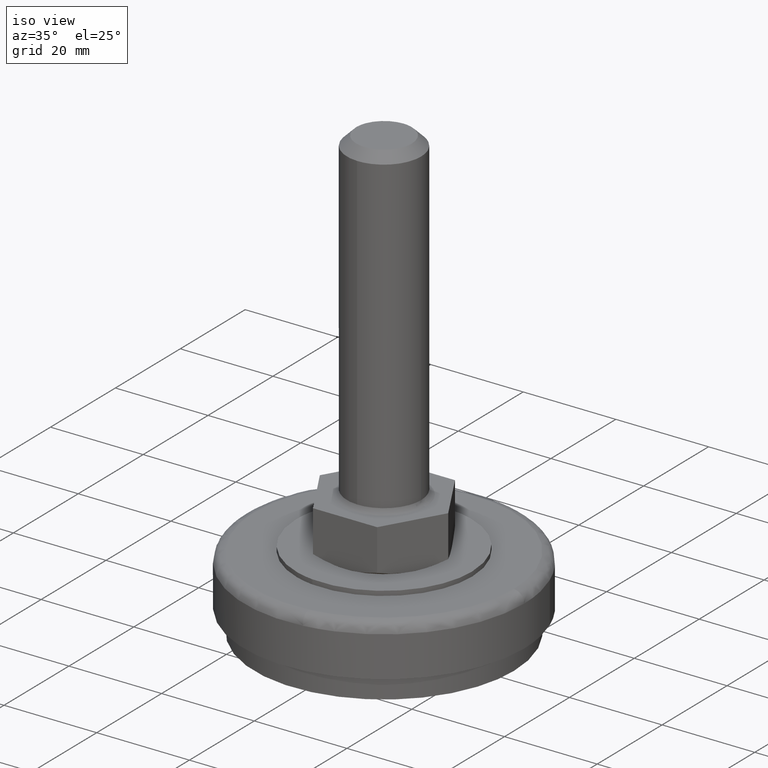
[diagram: clean part render]
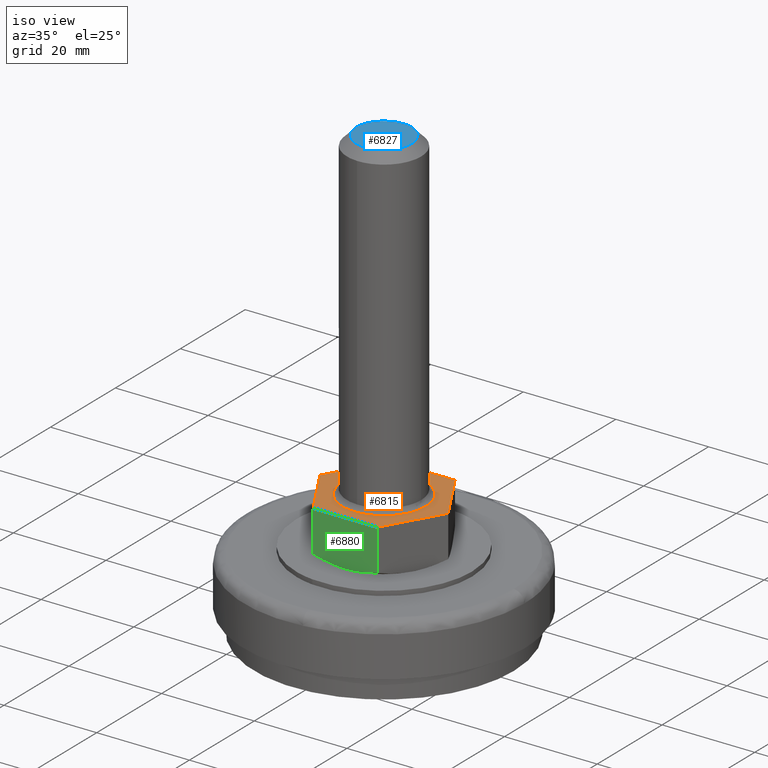
[diagram: same view with three faces highlighted in distinct colors, each labeled with its STEP entity id]
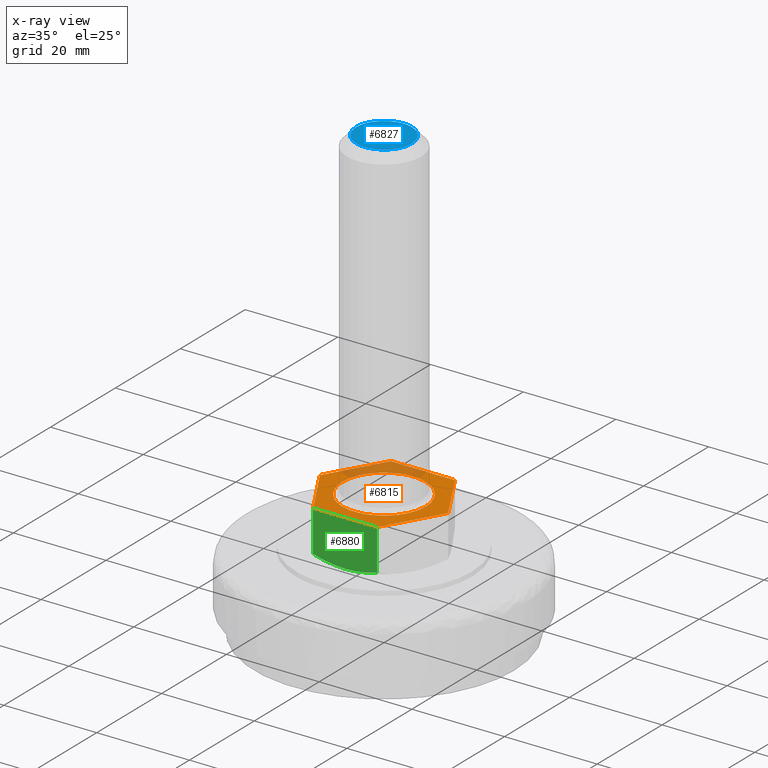
[diagram: x-ray of the same camera — body ghosted, the three highlighted faces saturated]
A machine part, iso view with three faces highlighted in distinct colors.
The next image is the same camera in x-ray (body ghosted, the three faces saturated) — at least one of them is partly hidden behind the body in this view.
Their STEP definitions:

[orange] entity #6815 — the highlighted face is a freeform B-spline surface patch.
#5915=CARTESIAN_POINT('',(-9.0,0.0,27.0));
#5916=VERTEX_POINT('',#5915);
#5917=CARTESIAN_POINT('',(0.627599264215905,8.978091064476018,27.0));
#5918=VERTEX_POINT('',#5917);
#5919=CARTESIAN_POINT('',(-9.0,0.0,27.0));
#5920=CARTESIAN_POINT('',(-9.0,9.0,27.0));
#5921=CARTESIAN_POINT('',(0.0,9.0,27.0));
#5922=CARTESIAN_POINT('',(0.314182042915423,8.999999999999998,27.000000000000004));
#5923=CARTESIAN_POINT('',(0.627599264215905,8.978091064476018,27.000000000000004));
#5931=(BOUNDED_CURVE()B_SPLINE_CURVE(2,(#5919,#5920,#5921,#5922,#5923),.UNSPECIFIED.,.F.,.U.)B_SPLINE_CURVE_WITH_KNOTS((3,2,3),(0.500000000000000,0.750000000000000,0.762166313466508),.UNSPECIFIED.)CURVE()GEOMETRIC_REPRESENTATION_ITEM()RATIONAL_B_SPLINE_CURVE((1.0,0.707106781186547,1.0,0.985746277150805,0.972879876383594))REPRESENTATION_ITEM(''));
#5932=EDGE_CURVE('',#5916,#5918,#5931,.T.);
#5934=CARTESIAN_POINT('',(8.999289397697183,-0.113094358939853,27.0));
#5935=VERTEX_POINT('',#5934);
#5936=CARTESIAN_POINT('',(8.999289397697183,-0.113094358939853,27.0));
#5937=CARTESIAN_POINT('',(8.887607369182808,-9.000000000000002,26.999999999999996));
#5938=CARTESIAN_POINT('',(0.0,-9.0,27.0));
#5939=CARTESIAN_POINT('',(-9.0,-9.0,27.0));
#5940=CARTESIAN_POINT('',(-9.0,0.0,27.0));
#5948=(BOUNDED_CURVE()B_SPLINE_CURVE(2,(#5936,#5937,#5938,#5939,#5940),.UNSPECIFIED.,.F.,.U.)B_SPLINE_CURVE_WITH_KNOTS((3,2,3),(0.002215704077936,0.250000000000000,0.500000000000000),.UNSPECIFIED.)CURVE()GEOMETRIC_REPRESENTATION_ITEM()RATIONAL_B_SPLINE_CURVE((0.994854295644786,0.709702639983846,1.0,0.707106781186547,1.0))REPRESENTATION_ITEM(''));
#5949=EDGE_CURVE('',#5935,#5916,#5948,.T.);
#6001=CARTESIAN_POINT('',(9.0,0.0,27.0));
#6002=VERTEX_POINT('',#6001);
#6003=CARTESIAN_POINT('',(0.627599264215905,8.978091064476018,27.0));
#6004=CARTESIAN_POINT('',(9.000000000000002,8.392831625319252,27.000000000000007));
#6005=CARTESIAN_POINT('',(9.0,0.0,27.0));
#6013=(BOUNDED_CURVE()B_SPLINE_CURVE(2,(#6003,#6004,#6005),.UNSPECIFIED.,.F.,.U.)B_SPLINE_CURVE_WITH_KNOTS((3,3),(0.762166313466507,1.0),.UNSPECIFIED.)CURVE()GEOMETRIC_REPRESENTATION_ITEM()RATIONAL_B_SPLINE_CURVE((0.972879876383594,0.721360504035743,1.0))REPRESENTATION_ITEM(''));
#6014=EDGE_CURVE('',#5918,#6002,#6013,.T.);
#6020=CARTESIAN_POINT('',(9.0,0.0,27.0));
#6021=CARTESIAN_POINT('',(8.999999999999998,-0.056549411918412,27.0));
#6022=CARTESIAN_POINT('',(8.999289397697183,-0.113094358939853,27.0));
#6030=(BOUNDED_CURVE()B_SPLINE_CURVE(2,(#6020,#6021,#6022),.UNSPECIFIED.,.F.,.U.)B_SPLINE_CURVE_WITH_KNOTS((3,3),(0.0,0.002215704077936),.UNSPECIFIED.)CURVE()GEOMETRIC_REPRESENTATION_ITEM()RATIONAL_B_SPLINE_CURVE((1.0,0.997404141202701,0.994854295644786))REPRESENTATION_ITEM(''));
#6031=EDGE_CURVE('',#6002,#5935,#6030,.T.);
#6760=CARTESIAN_POINT('',(-15.233615466367590,-13.198799953483350,27.0));
#6761=CARTESIAN_POINT('',(15.233615714024880,-13.198799953483350,27.0));
#6762=CARTESIAN_POINT('',(-15.233615466367590,13.198800597213509,27.0));
#6763=CARTESIAN_POINT('',(15.233615714024880,13.198800597213509,27.0));
#6764=B_SPLINE_SURFACE_WITH_KNOTS('',1,1,((#6760,#6762),(#6761,#6763)),.UNSPECIFIED.,.F.,.F.,.U.,(2,2),(2,2),(0.0,30.467231180392471),(0.0,26.397600550696851),.UNSPECIFIED.);
#6765=CARTESIAN_POINT('',(-6.921797000000001,12.0,27.0));
#6766=VERTEX_POINT('',#6765);
#6767=CARTESIAN_POINT('',(6.921797000000001,12.0,27.0));
#6768=VERTEX_POINT('',#6767);
#6769=CARTESIAN_POINT('',(-6.921797000000001,12.0,27.0));
#6770=CARTESIAN_POINT('',(6.921797000000001,12.0,27.0));
#6771=QUASI_UNIFORM_CURVE('',1,(#6769,#6770),.UNSPECIFIED.,.F.,.U.);
#6772=EDGE_CURVE('',#6766,#6768,#6771,.T.);
#6773=ORIENTED_EDGE('',*,*,#6772,.F.);
#6774=CARTESIAN_POINT('',(-13.850000000000000,0.0,27.0));
#6775=VERTEX_POINT('',#6774);
#6776=CARTESIAN_POINT('',(-13.850000000000000,0.0,27.0));
#6777=CARTESIAN_POINT('',(-6.921797000000001,12.0,27.0));
#6778=QUASI_UNIFORM_CURVE('',1,(#6776,#6777),.UNSPECIFIED.,.F.,.U.);
#6779=EDGE_CURVE('',#6775,#6766,#6778,.T.);
#6780=ORIENTED_EDGE('',*,*,#6779,.F.);
#6781=CARTESIAN_POINT('',(-6.921797000000001,-12.0,27.0));
#6782=VERTEX_POINT('',#6781);
#6783=CARTESIAN_POINT('',(-6.921797000000001,-12.0,27.0));
#6784=CARTESIAN_POINT('',(-13.850000000000000,0.0,27.0));
#6785=QUASI_UNIFORM_CURVE('',1,(#6783,#6784),.UNSPECIFIED.,.F.,.U.);
#6786=EDGE_CURVE('',#6782,#6775,#6785,.T.);
#6787=ORIENTED_EDGE('',*,*,#6786,.F.);
#6788=CARTESIAN_POINT('',(6.921797000000001,-12.0,27.0));
#6789=VERTEX_POINT('',#6788);
#6790=CARTESIAN_POINT('',(6.921797000000001,-12.0,27.0));
#6791=CARTESIAN_POINT('',(-6.921797000000001,-12.0,27.0));
#6792=QUASI_UNIFORM_CURVE('',1,(#6790,#6791),.UNSPECIFIED.,.F.,.U.);
#6793=EDGE_CURVE('',#6789,#6782,#6792,.T.);
#6794=ORIENTED_EDGE('',*,*,#6793,.F.);
#6795=CARTESIAN_POINT('',(13.850000000000000,0.0,27.0));
#6796=VERTEX_POINT('',#6795);
#6797=CARTESIAN_POINT('',(13.850000000000000,0.0,27.0));
#6798=CARTESIAN_POINT('',(6.921797000000001,-12.0,27.0));
#6799=QUASI_UNIFORM_CURVE('',1,(#6797,#6798),.UNSPECIFIED.,.F.,.U.);
#6800=EDGE_CURVE('',#6796,#6789,#6799,.T.);
#6801=ORIENTED_EDGE('',*,*,#6800,.F.);
#6802=CARTESIAN_POINT('',(6.921797000000001,12.0,27.0));
#6803=CARTESIAN_POINT('',(13.850000000000000,0.0,27.0));
#6804=QUASI_UNIFORM_CURVE('',1,(#6802,#6803),.UNSPECIFIED.,.F.,.U.);
#6805=EDGE_CURVE('',#6768,#6796,#6804,.T.);
#6806=ORIENTED_EDGE('',*,*,#6805,.F.);
#6807=EDGE_LOOP('',(#6773,#6780,#6787,#6794,#6801,#6806));
#6808=FACE_OUTER_BOUND('',#6807,.T.);
#6809=ORIENTED_EDGE('',*,*,#6031,.T.);
#6810=ORIENTED_EDGE('',*,*,#5949,.T.);
#6811=ORIENTED_EDGE('',*,*,#5932,.T.);
#6812=ORIENTED_EDGE('',*,*,#6014,.T.);
#6813=EDGE_LOOP('',(#6809,#6810,#6811,#6812));
#6814=FACE_BOUND('',#6813,.T.);
#6815=ADVANCED_FACE('',(#6808,#6814),#6764,.T.);

[blue] entity #6827 — the highlighted face is a freeform B-spline surface patch.
#5388=CARTESIAN_POINT('',(6.0,0.0,97.0));
#5389=VERTEX_POINT('',#5388);
#5390=CARTESIAN_POINT('',(4.137835456707148,4.344918610655132,96.999999999999972));
#5391=VERTEX_POINT('',#5390);
#5392=CARTESIAN_POINT('',(6.0,0.0,97.0));
#5393=CARTESIAN_POINT('',(5.999999999999999,2.571506686533739,96.999999999999986));
#5394=CARTESIAN_POINT('',(4.137835456707148,4.344918610655131,96.999999999999972));
#5402=(BOUNDED_CURVE()B_SPLINE_CURVE(2,(#5392,#5393,#5394),.UNSPECIFIED.,.F.,.U.)B_SPLINE_CURVE_WITH_KNOTS((3,3),(0.500000000000000,0.628682976150245),.UNSPECIFIED.)CURVE()GEOMETRIC_REPRESENTATION_ITEM()RATIONAL_B_SPLINE_CURVE((1.0,0.849238515635440,0.853680523245762))REPRESENTATION_ITEM(''));
#5403=EDGE_CURVE('',#5389,#5391,#5402,.T.);
#5405=CARTESIAN_POINT('',(-6.0,0.0,97.0));
#5406=VERTEX_POINT('',#5405);
#5407=CARTESIAN_POINT('',(-6.0,0.0,97.0));
#5408=CARTESIAN_POINT('',(-6.0,-6.0,97.0));
#5409=CARTESIAN_POINT('',(0.0,-6.0,97.0));
#5410=CARTESIAN_POINT('',(6.0,-6.0,97.0));
#5411=CARTESIAN_POINT('',(6.0,0.0,97.0));
#5419=(BOUNDED_CURVE()B_SPLINE_CURVE(2,(#5407,#5408,#5409,#5410,#5411),.UNSPECIFIED.,.F.,.U.)B_SPLINE_CURVE_WITH_KNOTS((3,2,3),(0.0,0.250000000000000,0.500000000000000),.UNSPECIFIED.)CURVE()GEOMETRIC_REPRESENTATION_ITEM()RATIONAL_B_SPLINE_CURVE((1.0,0.707106781186548,1.0,0.707106781186548,1.0))REPRESENTATION_ITEM(''));
#5420=EDGE_CURVE('',#5406,#5389,#5419,.T.);
#5422=CARTESIAN_POINT('',(0.052359213484174,5.999771538448032,96.999999999932683));
#5423=VERTEX_POINT('',#5422);
#5424=CARTESIAN_POINT('',(0.052359213484174,5.999771538448032,96.999999999932683));
#5425=CARTESIAN_POINT('',(0.026180105417581,6.000000000000001,97.0));
#5426=CARTESIAN_POINT('',(0.0,6.0,97.0));
#5427=CARTESIAN_POINT('',(-6.0,6.0,97.0));
#5428=CARTESIAN_POINT('',(-6.0,0.0,97.0));
#5436=(BOUNDED_CURVE()B_SPLINE_CURVE(2,(#5424,#5425,#5426,#5427,#5428),.UNSPECIFIED.,.F.,.U.)B_SPLINE_CURVE_WITH_KNOTS((3,2,3),(0.748460105636045,0.750000000000000,1.0),.UNSPECIFIED.)CURVE()GEOMETRIC_REPRESENTATION_ITEM()RATIONAL_B_SPLINE_CURVE((0.996414028033367,0.998195901532435,1.0,0.707106781186548,1.0))REPRESENTATION_ITEM(''));
#5437=EDGE_CURVE('',#5423,#5406,#5436,.T.);
#5547=CARTESIAN_POINT('',(4.137835456707148,4.344918610655131,96.999999999999972));
#5548=CARTESIAN_POINT('',(2.421876689004428,5.979093072254260,97.000000000000014));
#5549=CARTESIAN_POINT('',(0.052359213484174,5.999771538448032,96.999999999932683));
#5557=(BOUNDED_CURVE()B_SPLINE_CURVE(2,(#5547,#5548,#5549),.UNSPECIFIED.,.F.,.U.)B_SPLINE_CURVE_WITH_KNOTS((3,3),(0.628682976150245,0.748460105636046),.UNSPECIFIED.)CURVE()GEOMETRIC_REPRESENTATION_ITEM()RATIONAL_B_SPLINE_CURVE((0.853680523245762,0.857815109938078,0.996414028033368))REPRESENTATION_ITEM(''));
#5558=EDGE_CURVE('',#5391,#5423,#5557,.T.);
#6816=CARTESIAN_POINT('',(-6.599399976741671,6.599160150396743,97.0));
#6817=CARTESIAN_POINT('',(6.599400298606753,6.599160150396743,97.0));
#6818=CARTESIAN_POINT('',(-6.599399976741671,-6.599388889181536,97.0));
#6819=CARTESIAN_POINT('',(6.599400298606753,-6.599388889181536,97.0));
#6820=B_SPLINE_SURFACE_WITH_KNOTS('',1,1,((#6816,#6818),(#6817,#6819)),.UNSPECIFIED.,.F.,.F.,.U.,(2,2),(2,2),(0.0,13.198800275348420),(0.0,13.198549039578280),.UNSPECIFIED.);
#6821=ORIENTED_EDGE('',*,*,#5420,.T.);
#6822=ORIENTED_EDGE('',*,*,#5403,.T.);
#6823=ORIENTED_EDGE('',*,*,#5558,.T.);
#6824=ORIENTED_EDGE('',*,*,#5437,.T.);
#6825=EDGE_LOOP('',(#6821,#6822,#6823,#6824));
#6826=FACE_OUTER_BOUND('',#6825,.T.);
#6827=ADVANCED_FACE('',(#6826),#6820,.F.);

[green] entity #6880 — the highlighted face is a freeform B-spline surface patch.
#5267=CARTESIAN_POINT('',(6.921797000000001,-12.0,18.073646796981201));
#5268=VERTEX_POINT('',#5267);
#5288=CARTESIAN_POINT('',(-6.921797000000001,-12.0,18.073646796981201));
#5289=VERTEX_POINT('',#5288);
#5290=CARTESIAN_POINT('',(-6.921796999999994,-12.0,18.073646796981219));
#5291=CARTESIAN_POINT('',(-6.358660324426921,-12.0,17.911196017434790));
#5292=CARTESIAN_POINT('',(-5.790343191297158,-12.000000000000011,17.762066278652380));
#5293=CARTESIAN_POINT('',(-4.640615515414093,-12.0,17.497475225435551));
#5294=CARTESIAN_POINT('',(-4.064224947717316,-12.0,17.383251962031270));
#5295=CARTESIAN_POINT('',(-2.908357873238030,-12.0,17.197071511113791));
#5296=CARTESIAN_POINT('',(-2.328807218985739,-12.0,17.125138279335602));
#5297=CARTESIAN_POINT('',(-1.166103339210485,-12.0,17.028404816675980));
#5298=CARTESIAN_POINT('',(-0.582947442430030,-12.0,17.003639534272221));
#5299=CARTESIAN_POINT('',(0.587159239858389,-12.0,17.003758089595440));
#5300=CARTESIAN_POINT('',(1.174110774181530,-12.0,17.028651724187970));
#5301=CARTESIAN_POINT('',(1.910142876343375,-12.0,17.090418470358319));
#5302=CARTESIAN_POINT('',(2.057339841839544,-12.0,17.104289639085220));
#5303=CARTESIAN_POINT('',(2.350644054811768,-12.0,17.134879830849361));
#5304=CARTESIAN_POINT('',(2.789433234024526,-12.0,17.185073760166759));
#5305=CARTESIAN_POINT('',(3.224847049230140,-12.0,17.247728260586779));
#5306=CARTESIAN_POINT('',(4.669317161793980,-12.0,17.482083020122989));
#5307=CARTESIAN_POINT('',(5.802870978181883,-12.0,17.750864757764649));
#5308=CARTESIAN_POINT('',(6.921797000000001,-12.0,18.073646796981201));
#5309=B_SPLINE_CURVE_WITH_KNOTS('',3,(#5290,#5291,#5292,#5293,#5294,#5295,#5296,#5297,#5298,#5299,#5300,#5301,#5302,#5303,#5304,#5305,#5306,#5307,#5308),.UNSPECIFIED.,.F.,.U.,(4,2,2,2,2,2,2,1,2,4),(0.0,0.125000000000000,0.250000000000000,0.375000000000000,0.500000000000001,0.625000000000001,0.656250000000001,0.687500000000001,0.750000000000001,1.0),.UNSPECIFIED.);
#5310=EDGE_CURVE('',#5289,#5268,#5309,.T.);
#6781=CARTESIAN_POINT('',(-6.921797000000001,-12.0,27.0));
#6782=VERTEX_POINT('',#6781);
#6788=CARTESIAN_POINT('',(6.921797000000001,-12.0,27.0));
#6789=VERTEX_POINT('',#6788);
#6790=CARTESIAN_POINT('',(6.921797000000001,-12.0,27.0));
#6791=CARTESIAN_POINT('',(-6.921797000000001,-12.0,27.0));
#6792=QUASI_UNIFORM_CURVE('',1,(#6790,#6791),.UNSPECIFIED.,.F.,.U.);
#6793=EDGE_CURVE('',#6789,#6782,#6792,.T.);
#6856=CARTESIAN_POINT('',(-6.921797000000001,-12.0,27.0));
#6857=CARTESIAN_POINT('',(-6.921797000000001,-12.0,18.073646796981201));
#6858=QUASI_UNIFORM_CURVE('',1,(#6856,#6857),.UNSPECIFIED.,.F.,.U.);
#6859=EDGE_CURVE('',#6782,#5289,#6858,.T.);
#6865=CARTESIAN_POINT('',(-7.613284314055633,-12.0,27.499315230271890));
#6866=CARTESIAN_POINT('',(-7.613284314055633,-12.0,16.504383207379000));
#6867=CARTESIAN_POINT('',(7.613283818970132,-12.0,27.499315230271890));
#6868=CARTESIAN_POINT('',(7.613283818970132,-12.0,16.504383207379000));
#6869=B_SPLINE_SURFACE_WITH_KNOTS('',1,1,((#6865,#6867),(#6866,#6868)),.UNSPECIFIED.,.F.,.F.,.U.,(2,2),(2,2),(0.0,10.994932022892890),(0.0,15.226568133025770),.UNSPECIFIED.);
#6870=ORIENTED_EDGE('',*,*,#6859,.T.);
#6871=ORIENTED_EDGE('',*,*,#5310,.T.);
#6872=CARTESIAN_POINT('',(6.921797000000001,-12.0,27.0));
#6873=CARTESIAN_POINT('',(6.921797000000001,-12.0,18.073646796981201));
#6874=QUASI_UNIFORM_CURVE('',1,(#6872,#6873),.UNSPECIFIED.,.F.,.U.);
#6875=EDGE_CURVE('',#6789,#5268,#6874,.T.);
#6876=ORIENTED_EDGE('',*,*,#6875,.F.);
#6877=ORIENTED_EDGE('',*,*,#6793,.T.);
#6878=EDGE_LOOP('',(#6870,#6871,#6876,#6877));
#6879=FACE_OUTER_BOUND('',#6878,.T.);
#6880=ADVANCED_FACE('',(#6879),#6869,.T.);